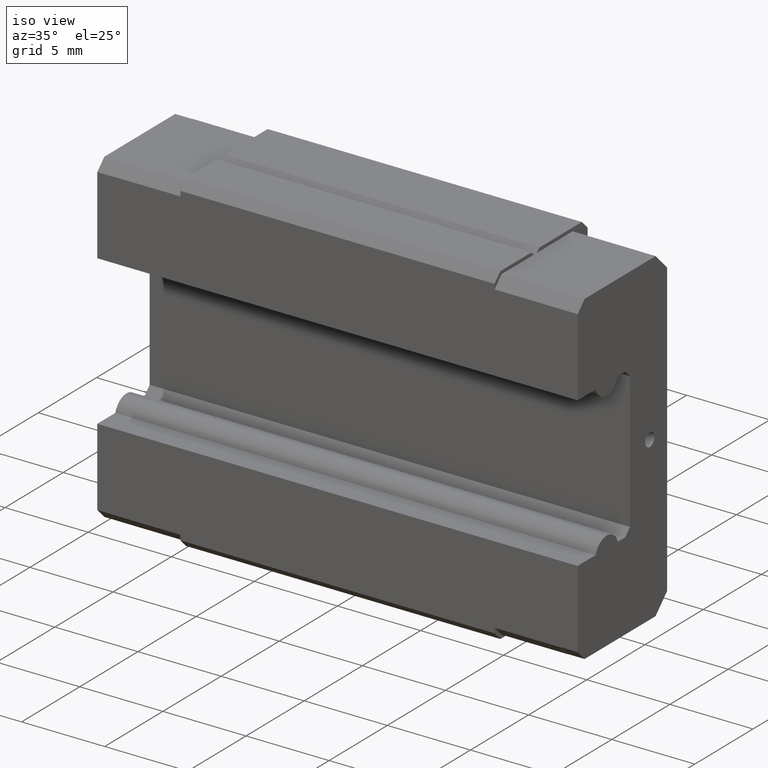
[diagram: clean part render]
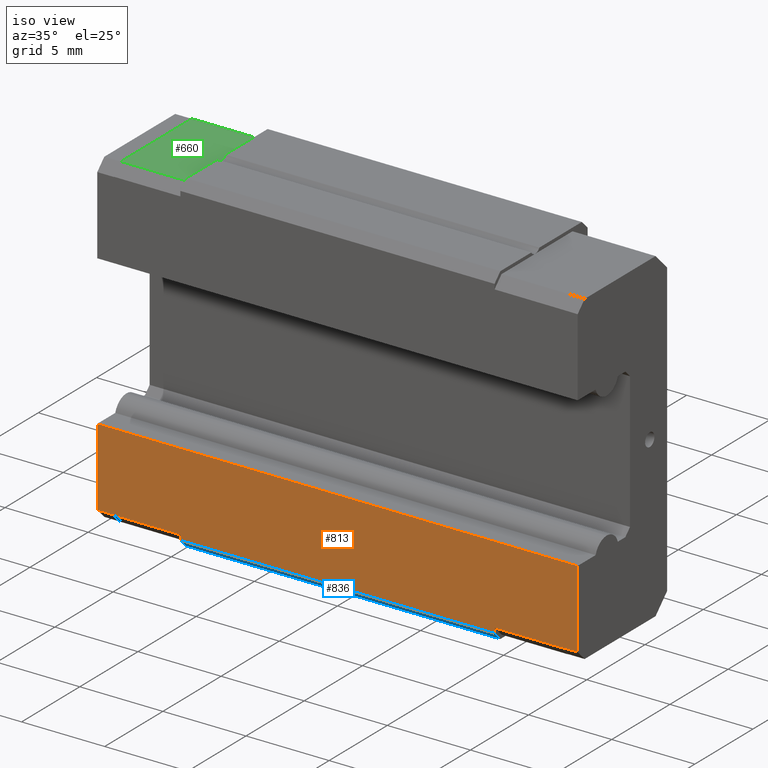
[diagram: same view with three faces highlighted in distinct colors, each labeled with its STEP entity id]
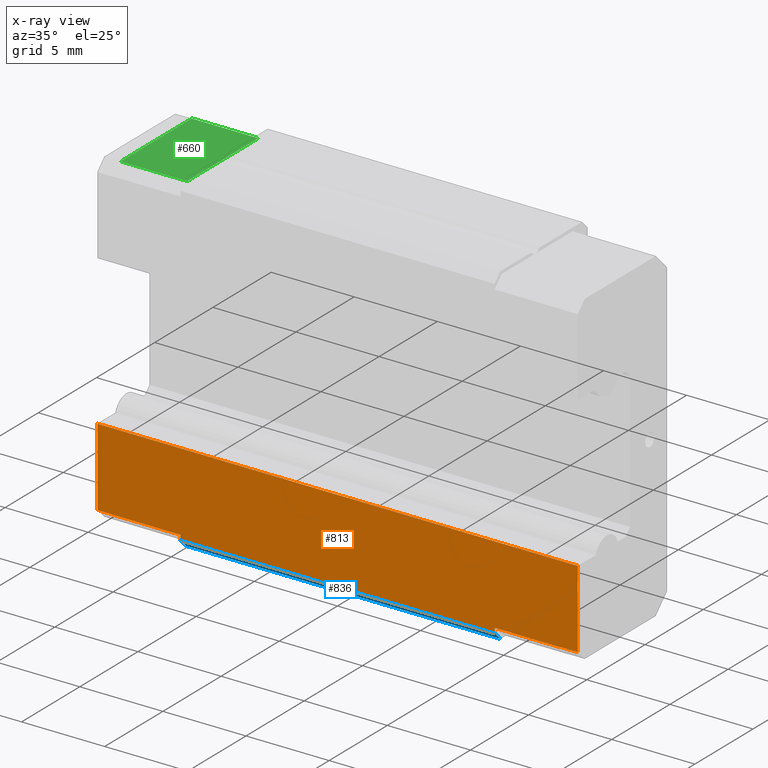
[diagram: x-ray of the same camera — body ghosted, the three highlighted faces saturated]
A machine part, iso view with three faces highlighted in distinct colors.
The next image is the same camera in x-ray (body ghosted, the three faces saturated) — at least one of them is partly hidden behind the body in this view.
Their STEP definitions:

[orange] entity #813 — the highlighted planar face has unit normal (0, -1, 0).
#158 = VERTEX_POINT ( 'NONE', #1245 ) ;
#240 = VERTEX_POINT ( 'NONE', #1379 ) ;
#242 = EDGE_CURVE ( 'NONE', #158, #240, #1378, .T. ) ;
#792 = VERTEX_POINT ( 'NONE', #1774 ) ;
#794 = ORIENTED_EDGE ( 'NONE', *, *, #796, .T. ) ;
#796 = EDGE_CURVE ( 'NONE', #792, #801, #1830, .T. ) ;
#801 = VERTEX_POINT ( 'NONE', #1815 ) ;
#802 = EDGE_CURVE ( 'NONE', #792, #804, #1814, .T. ) ;
#803 = EDGE_LOOP ( 'NONE', ( #809, #811, #794, #816, #830, #814, #825, #821, #828, #806, #838 ) ) ;
#804 = VERTEX_POINT ( 'NONE', #1810 ) ;
#806 = ORIENTED_EDGE ( 'NONE', *, *, #839, .F. ) ;
#807 = EDGE_CURVE ( 'NONE', #240, #804, #1809, .T. ) ;
#809 = ORIENTED_EDGE ( 'NONE', *, *, #807, .T. ) ;
#811 = ORIENTED_EDGE ( 'NONE', *, *, #802, .F. ) ;
#813 = ADVANCED_FACE ( 'NONE', ( #1801 ), #1800, .T. ) ;
#814 = ORIENTED_EDGE ( 'NONE', *, *, #818, .F. ) ;
#816 = ORIENTED_EDGE ( 'NONE', *, *, #824, .T. ) ;
#818 = EDGE_CURVE ( 'NONE', #888, #852, #1860, .T. ) ;
#820 = VERTEX_POINT ( 'NONE', #1856 ) ;
#821 = ORIENTED_EDGE ( 'NONE', *, *, #823, .F. ) ;
#823 = EDGE_CURVE ( 'NONE', #820, #882, #1855, .T. ) ;
#824 = EDGE_CURVE ( 'NONE', #801, #925, #1851, .T. ) ;
#825 = ORIENTED_EDGE ( 'NONE', *, *, #885, .T. ) ;
#828 = ORIENTED_EDGE ( 'NONE', *, *, #829, .T. ) ;
#829 = EDGE_CURVE ( 'NONE', #820, #834, #1847, .T. ) ;
#830 = ORIENTED_EDGE ( 'NONE', *, *, #843, .F. ) ;
#834 = VERTEX_POINT ( 'NONE', #1832 ) ;
#838 = ORIENTED_EDGE ( 'NONE', *, *, #242, .T. ) ;
#839 = EDGE_CURVE ( 'NONE', #158, #834, #1891, .T. ) ;
#843 = EDGE_CURVE ( 'NONE', #852, #925, #1883, .T. ) ;
#852 = VERTEX_POINT ( 'NONE', #1871 ) ;
#882 = VERTEX_POINT ( 'NONE', #1927 ) ;
#885 = EDGE_CURVE ( 'NONE', #888, #882, #1925, .T. ) ;
#888 = VERTEX_POINT ( 'NONE', #1980 ) ;
#925 = VERTEX_POINT ( 'NONE', #1990 ) ;
#1245 = CARTESIAN_POINT ( 'NONE',  ( 14.45000000000000100, 0.0000000000000000000, -9.185857864376270500 ) ) ;
#1375 = DIRECTION ( 'NONE',  ( 0.0000000000000000000, 3.920113635324863600E-017, 1.000000000000000000 ) ) ;
#1376 = VECTOR ( 'NONE', #1375, 1000.000000000000000 ) ;
#1377 = CARTESIAN_POINT ( 'NONE',  ( 14.45000000000000100, 0.0000000000000000000, -9.185857864376270500 ) ) ;
#1378 = LINE ( 'NONE', #1377, #1376 ) ;
#1379 = CARTESIAN_POINT ( 'NONE',  ( 14.45000000000000100, 1.836909530733566400E-016, -4.500000000000000000 ) ) ;
#1774 = CARTESIAN_POINT ( 'NONE',  ( -14.45000000000000100, 0.0000000000000000000, -9.185857864376270500 ) ) ;
#1799 = CARTESIAN_POINT ( 'NONE',  ( 9.449999999999999300, 1.836909530733566400E-016, -4.500000000000000000 ) ) ;
#1800 = PLANE ( 'NONE',  #1863 ) ;
#1801 = FACE_OUTER_BOUND ( 'NONE', #803, .T. ) ;
#1806 = DIRECTION ( 'NONE',  ( -1.000000000000000000, 0.0000000000000000000, 0.0000000000000000000 ) ) ;
#1807 = VECTOR ( 'NONE', #1806, 1000.000000000000000 ) ;
#1808 = CARTESIAN_POINT ( 'NONE',  ( 9.449999999999999300, 1.836909530733566400E-016, -4.500000000000000000 ) ) ;
#1809 = LINE ( 'NONE', #1808, #1807 ) ;
#1810 = CARTESIAN_POINT ( 'NONE',  ( -14.45000000000000100, 1.836909530733566400E-016, -4.500000000000000000 ) ) ;
#1811 = DIRECTION ( 'NONE',  ( 0.0000000000000000000, 3.920113635324863600E-017, 1.000000000000000000 ) ) ;
#1812 = VECTOR ( 'NONE', #1811, 1000.000000000000000 ) ;
#1813 = CARTESIAN_POINT ( 'NONE',  ( -14.45000000000000100, 0.0000000000000000000, -9.185857864376270500 ) ) ;
#1814 = LINE ( 'NONE', #1813, #1812 ) ;
#1815 = CARTESIAN_POINT ( 'NONE',  ( -13.44999999999999900, 0.0000000000000000000, -9.192928932188134900 ) ) ;
#1827 = DIRECTION ( 'NONE',  ( 1.000000000000000000, 0.0000000000000000000, 0.0000000000000000000 ) ) ;
#1828 = VECTOR ( 'NONE', #1827, 1000.000000000000000 ) ;
#1829 = CARTESIAN_POINT ( 'NONE',  ( -14.45000000000000100, 0.0000000000000000000, -9.185857864376270500 ) ) ;
#1830 = LINE ( 'NONE', #1829, #1828 ) ;
#1832 = CARTESIAN_POINT ( 'NONE',  ( 13.44999999999999900, 5.448646845100023300E-017, -9.185857864376272300 ) ) ;
#1844 = DIRECTION ( 'NONE',  ( 0.0000000000000000000, 3.908318150496949500E-017, 1.000000000000000000 ) ) ;
#1845 = VECTOR ( 'NONE', #1844, 1000.000000000000000 ) ;
#1846 = CARTESIAN_POINT ( 'NONE',  ( 13.44999999999999900, 0.0000000000000000000, -9.199999999999999300 ) ) ;
#1847 = LINE ( 'NONE', #1846, #1845 ) ;
#1848 = DIRECTION ( 'NONE',  ( 1.000000000000000000, 0.0000000000000000000, 0.0000000000000000000 ) ) ;
#1849 = VECTOR ( 'NONE', #1848, 1000.000000000000000 ) ;
#1850 = CARTESIAN_POINT ( 'NONE',  ( -13.44999999999999900, 0.0000000000000000000, -9.199999999999999300 ) ) ;
#1851 = LINE ( 'NONE', #1850, #1849 ) ;
#1852 = DIRECTION ( 'NONE',  ( -1.000000000000000000, 0.0000000000000000000, 0.0000000000000000000 ) ) ;
#1853 = VECTOR ( 'NONE', #1852, 1000.000000000000000 ) ;
#1854 = CARTESIAN_POINT ( 'NONE',  ( 13.44999999999999900, 0.0000000000000000000, -9.199999999999999300 ) ) ;
#1855 = LINE ( 'NONE', #1854, #1853 ) ;
#1856 = CARTESIAN_POINT ( 'NONE',  ( 13.44999999999999900, 0.0000000000000000000, -9.199999999999999300 ) ) ;
#1857 = DIRECTION ( 'NONE',  ( -1.000000000000000000, 0.0000000000000000000, 0.0000000000000000000 ) ) ;
#1858 = VECTOR ( 'NONE', #1857, 1000.000000000000000 ) ;
#1859 = CARTESIAN_POINT ( 'NONE',  ( 9.449999999999999300, -3.773012176126744000E-015, -9.499999999999998200 ) ) ;
#1860 = LINE ( 'NONE', #1859, #1858 ) ;
#1861 = DIRECTION ( 'NONE',  ( 0.0000000000000000000, -7.913406258400204500E-016, -1.000000000000000000 ) ) ;
#1862 = DIRECTION ( 'NONE',  ( 0.0000000000000000000, -1.000000000000000000, 7.913406258400204500E-016 ) ) ;
#1863 = AXIS2_PLACEMENT_3D ( 'NONE', #1799, #1862, #1861 ) ;
#1871 = CARTESIAN_POINT ( 'NONE',  ( -9.449999999999999300, -3.773012176126744000E-015, -9.499999999999998200 ) ) ;
#1880 = DIRECTION ( 'NONE',  ( 0.0000000000000000000, 7.913406258400204500E-016, 1.000000000000000000 ) ) ;
#1881 = VECTOR ( 'NONE', #1880, 1000.000000000000000 ) ;
#1882 = CARTESIAN_POINT ( 'NONE',  ( -9.449999999999999300, 1.836909530733566400E-016, -4.500000000000000000 ) ) ;
#1883 = LINE ( 'NONE', #1882, #1881 ) ;
#1888 = DIRECTION ( 'NONE',  ( -1.000000000000000000, 0.0000000000000000000, 0.0000000000000000000 ) ) ;
#1889 = VECTOR ( 'NONE', #1888, 1000.000000000000000 ) ;
#1890 = CARTESIAN_POINT ( 'NONE',  ( 14.45000000000000100, 0.0000000000000000000, -9.185857864376270500 ) ) ;
#1891 = LINE ( 'NONE', #1890, #1889 ) ;
#1922 = DIRECTION ( 'NONE',  ( 0.0000000000000000000, 7.913406258400204500E-016, 1.000000000000000000 ) ) ;
#1923 = VECTOR ( 'NONE', #1922, 1000.000000000000000 ) ;
#1924 = CARTESIAN_POINT ( 'NONE',  ( 9.449999999999999300, 1.836909530733566400E-016, -4.500000000000000000 ) ) ;
#1925 = LINE ( 'NONE', #1924, #1923 ) ;
#1927 = CARTESIAN_POINT ( 'NONE',  ( 9.449999999999999300, 0.0000000000000000000, -9.199999999999999300 ) ) ;
#1980 = CARTESIAN_POINT ( 'NONE',  ( 9.449999999999999300, -3.773012176126744000E-015, -9.499999999999998200 ) ) ;
#1990 = CARTESIAN_POINT ( 'NONE',  ( -9.449999999999999300, -3.535609988374736600E-015, -9.199999999999995700 ) ) ;

[blue] entity #836 — the highlighted planar face has unit normal (0, -0.7071, -0.7071).
#815 = ORIENTED_EDGE ( 'NONE', *, *, #840, .F. ) ;
#818 = EDGE_CURVE ( 'NONE', #888, #852, #1860, .T. ) ;
#819 = ORIENTED_EDGE ( 'NONE', *, *, #818, .T. ) ;
#826 = EDGE_LOOP ( 'NONE', ( #819, #815, #832, #835 ) ) ;
#832 = ORIENTED_EDGE ( 'NONE', *, *, #833, .F. ) ;
#833 = EDGE_CURVE ( 'NONE', #884, #1040, #1837, .T. ) ;
#835 = ORIENTED_EDGE ( 'NONE', *, *, #877, .T. ) ;
#836 = ADVANCED_FACE ( 'NONE', ( #1831 ), #1833, .T. ) ;
#840 = EDGE_CURVE ( 'NONE', #1040, #852, #1887, .T. ) ;
#852 = VERTEX_POINT ( 'NONE', #1871 ) ;
#877 = EDGE_CURVE ( 'NONE', #884, #888, #1945, .T. ) ;
#884 = VERTEX_POINT ( 'NONE', #1926 ) ;
#888 = VERTEX_POINT ( 'NONE', #1980 ) ;
#1040 = VERTEX_POINT ( 'NONE', #2239 ) ;
#1831 = FACE_OUTER_BOUND ( 'NONE', #826, .T. ) ;
#1833 = PLANE ( 'NONE',  #1895 ) ;
#1834 = DIRECTION ( 'NONE',  ( -1.000000000000000000, 0.0000000000000000000, 0.0000000000000000000 ) ) ;
#1835 = VECTOR ( 'NONE', #1834, 1000.000000000000000 ) ;
#1836 = CARTESIAN_POINT ( 'NONE',  ( 9.449999999999999300, 0.4999999999999977200, -10.00000000000000000 ) ) ;
#1837 = LINE ( 'NONE', #1836, #1835 ) ;
#1857 = DIRECTION ( 'NONE',  ( -1.000000000000000000, 0.0000000000000000000, 0.0000000000000000000 ) ) ;
#1858 = VECTOR ( 'NONE', #1857, 1000.000000000000000 ) ;
#1859 = CARTESIAN_POINT ( 'NONE',  ( 9.449999999999999300, -3.773012176126744000E-015, -9.499999999999998200 ) ) ;
#1860 = LINE ( 'NONE', #1859, #1858 ) ;
#1871 = CARTESIAN_POINT ( 'NONE',  ( -9.449999999999999300, -3.773012176126744000E-015, -9.499999999999998200 ) ) ;
#1884 = DIRECTION ( 'NONE',  ( 0.0000000000000000000, -0.7071067811865470200, 0.7071067811865479100 ) ) ;
#1885 = VECTOR ( 'NONE', #1884, 1000.000000000000100 ) ;
#1886 = CARTESIAN_POINT ( 'NONE',  ( -9.449999999999999300, -3.773012176126744000E-015, -9.499999999999998200 ) ) ;
#1887 = LINE ( 'NONE', #1886, #1885 ) ;
#1892 = DIRECTION ( 'NONE',  ( 0.0000000000000000000, 0.7071067811865470200, -0.7071067811865479100 ) ) ;
#1893 = DIRECTION ( 'NONE',  ( 0.0000000000000000000, -0.7071067811865480200, -0.7071067811865471300 ) ) ;
#1894 = CARTESIAN_POINT ( 'NONE',  ( 9.449999999999999300, -3.773012176126744000E-015, -9.499999999999998200 ) ) ;
#1895 = AXIS2_PLACEMENT_3D ( 'NONE', #1894, #1893, #1892 ) ;
#1926 = CARTESIAN_POINT ( 'NONE',  ( 9.449999999999999300, 0.4999999999999977200, -10.00000000000000000 ) ) ;
#1938 = DIRECTION ( 'NONE',  ( 0.0000000000000000000, -0.7071067811865470200, 0.7071067811865479100 ) ) ;
#1939 = VECTOR ( 'NONE', #1938, 1000.000000000000100 ) ;
#1940 = CARTESIAN_POINT ( 'NONE',  ( 9.449999999999999300, -3.773012176126744000E-015, -9.499999999999998200 ) ) ;
#1945 = LINE ( 'NONE', #1940, #1939 ) ;
#1980 = CARTESIAN_POINT ( 'NONE',  ( 9.449999999999999300, -3.773012176126744000E-015, -9.499999999999998200 ) ) ;
#2239 = CARTESIAN_POINT ( 'NONE',  ( -9.449999999999999300, 0.4999999999999977200, -10.00000000000000000 ) ) ;

[green] entity #660 — the highlighted planar face has unit normal (0, 0, 1).
#622 = VERTEX_POINT ( 'NONE', #1561 ) ;
#640 = EDGE_CURVE ( 'NONE', #622, #729, #1546, .T. ) ;
#657 = EDGE_LOOP ( 'NONE', ( #679, #678, #687, #675, #674 ) ) ;
#660 = ADVANCED_FACE ( 'NONE', ( #1637 ), #1636, .T. ) ;
#663 = VERTEX_POINT ( 'NONE', #1631 ) ;
#664 = EDGE_CURVE ( 'NONE', #663, #1195, #1630, .T. ) ;
#665 = EDGE_CURVE ( 'NONE', #677, #663, #1626, .T. ) ;
#674 = ORIENTED_EDGE ( 'NONE', *, *, #914, .T. ) ;
#675 = ORIENTED_EDGE ( 'NONE', *, *, #664, .T. ) ;
#677 = VERTEX_POINT ( 'NONE', #1610 ) ;
#678 = ORIENTED_EDGE ( 'NONE', *, *, #682, .F. ) ;
#679 = ORIENTED_EDGE ( 'NONE', *, *, #640, .F. ) ;
#682 = EDGE_CURVE ( 'NONE', #677, #622, #1672, .T. ) ;
#687 = ORIENTED_EDGE ( 'NONE', *, *, #665, .T. ) ;
#729 = VERTEX_POINT ( 'NONE', #1674 ) ;
#914 = EDGE_CURVE ( 'NONE', #1195, #729, #2007, .T. ) ;
#1195 = VERTEX_POINT ( 'NONE', #2496 ) ;
#1543 = DIRECTION ( 'NONE',  ( 0.0000000000000000000, -1.000000000000000000, 2.843808977011160300E-016 ) ) ;
#1544 = VECTOR ( 'NONE', #1543, 1000.000000000000000 ) ;
#1545 = CARTESIAN_POINT ( 'NONE',  ( -9.449999999999999300, 6.699999999999997500, 9.799999999999998900 ) ) ;
#1546 = LINE ( 'NONE', #1545, #1544 ) ;
#1561 = CARTESIAN_POINT ( 'NONE',  ( -9.449999999999999300, 6.699999999999997500, 9.799999999999998900 ) ) ;
#1610 = CARTESIAN_POINT ( 'NONE',  ( -13.44999999999999900, 6.699999999999997500, 9.799999999999998900 ) ) ;
#1623 = DIRECTION ( 'NONE',  ( 0.0000000000000000000, -1.000000000000000000, 2.843808977011160300E-016 ) ) ;
#1624 = VECTOR ( 'NONE', #1623, 1000.000000000000000 ) ;
#1625 = CARTESIAN_POINT ( 'NONE',  ( -13.44999999999999900, 6.699999999999997500, 9.799999999999998900 ) ) ;
#1626 = LINE ( 'NONE', #1625, #1624 ) ;
#1627 = DIRECTION ( 'NONE',  ( 1.000000000000000000, 0.0000000000000000000, 0.0000000000000000000 ) ) ;
#1628 = VECTOR ( 'NONE', #1627, 1000.000000000000000 ) ;
#1629 = CARTESIAN_POINT ( 'NONE',  ( -13.44999999999999900, 0.5999999999999999800, 9.800000000000000700 ) ) ;
#1630 = LINE ( 'NONE', #1629, #1628 ) ;
#1631 = CARTESIAN_POINT ( 'NONE',  ( -13.44999999999999900, 0.5999999999999999800, 9.800000000000000700 ) ) ;
#1632 = DIRECTION ( 'NONE',  ( 0.0000000000000000000, -1.000000000000000000, 2.843808977011160300E-016 ) ) ;
#1633 = DIRECTION ( 'NONE',  ( 0.0000000000000000000, 2.843808977011160300E-016, 1.000000000000000000 ) ) ;
#1634 = CARTESIAN_POINT ( 'NONE',  ( -13.44999999999999900, 6.699999999999997500, 9.799999999999998900 ) ) ;
#1635 = AXIS2_PLACEMENT_3D ( 'NONE', #1634, #1633, #1632 ) ;
#1636 = PLANE ( 'NONE',  #1635 ) ;
#1637 = FACE_OUTER_BOUND ( 'NONE', #657, .T. ) ;
#1669 = DIRECTION ( 'NONE',  ( 1.000000000000000000, 0.0000000000000000000, 0.0000000000000000000 ) ) ;
#1670 = VECTOR ( 'NONE', #1669, 1000.000000000000000 ) ;
#1671 = CARTESIAN_POINT ( 'NONE',  ( -13.44999999999999900, 6.699999999999997500, 9.799999999999998900 ) ) ;
#1672 = LINE ( 'NONE', #1671, #1670 ) ;
#1674 = CARTESIAN_POINT ( 'NONE',  ( -9.449999999999999300, 3.499999999999999600, 9.800000000000000700 ) ) ;
#2004 = DIRECTION ( 'NONE',  ( 0.0000000000000000000, 1.000000000000000000, -2.843808977011160300E-016 ) ) ;
#2005 = VECTOR ( 'NONE', #2004, 1000.000000000000000 ) ;
#2006 = CARTESIAN_POINT ( 'NONE',  ( -9.449999999999999300, 2.500000000000001300, 9.799999999999998900 ) ) ;
#2007 = LINE ( 'NONE', #2006, #2005 ) ;
#2496 = CARTESIAN_POINT ( 'NONE',  ( -9.449999999999999300, 0.5999999999999999800, 9.800000000000000700 ) ) ;